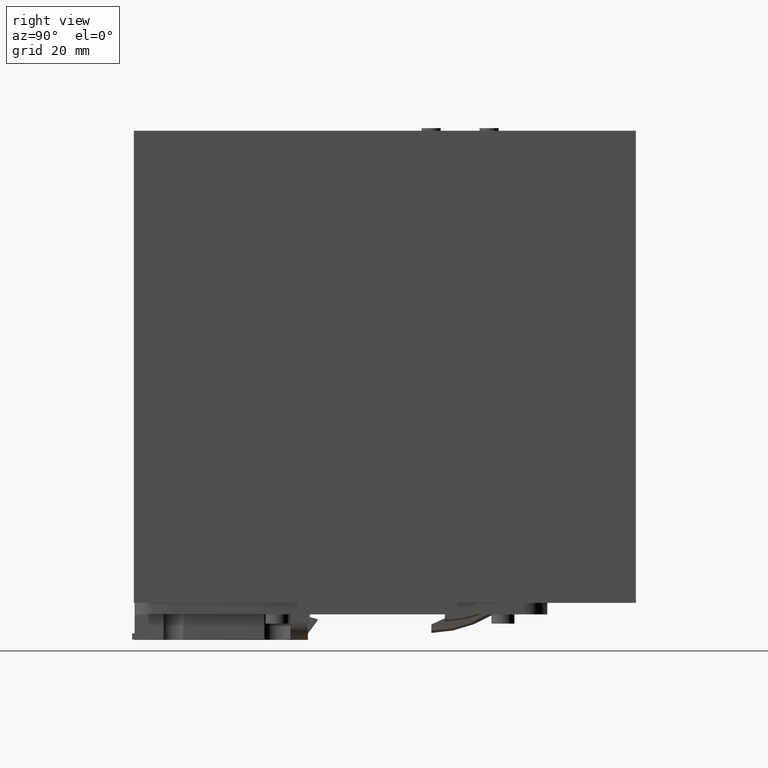
[diagram: clean part render]
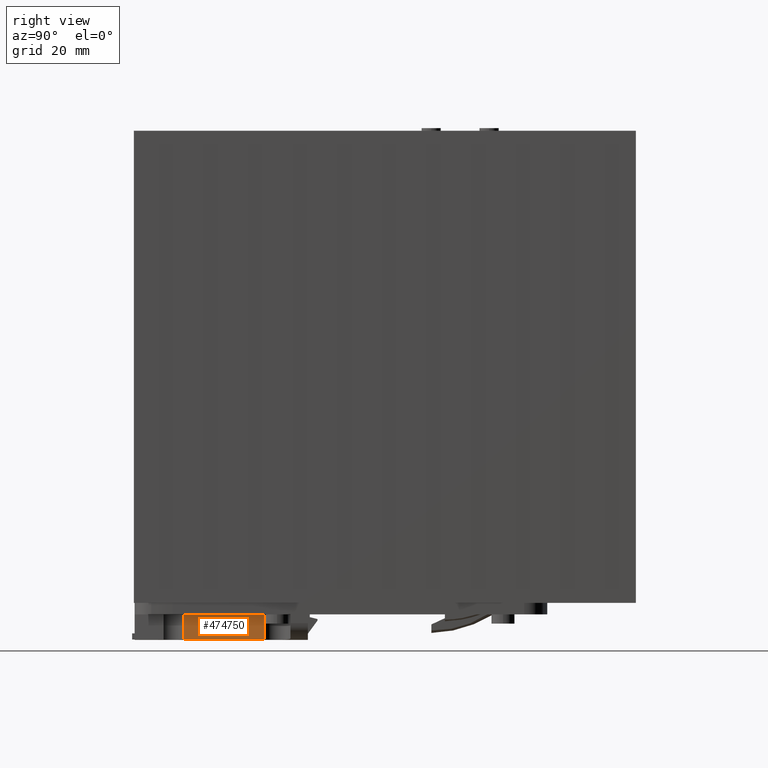
[diagram: same view with one face highlighted and labeled with its STEP entity id]
A machine part, right view. The second image highlights one B-rep face of the part: STEP entity #474750.
In plain terms, the highlighted cylindrical surface (partial cylindrical patch) has radius 401.5 mm, axis along (0, 0, -1).
Its self-contained STEP definition (entity closure, byte-faithful):
#471220=CARTESIAN_POINT('',(28.2357244112665,33.7857341003012,
6.59999999999972));
#471230=VERTEX_POINT('',#471220);
#471280=CARTESIAN_POINT('',(-373.198675095222,41.0433434100426,
6.59999999999972));
#471290=DIRECTION('',(9.95682444457783E-60,-3.26265223399926E-55,-1.));
#471300=DIRECTION('',(-1.,1.38913403349705E-19,-9.95682444457783E-60));
#471310=AXIS2_PLACEMENT_3D('',#471280,#471290,#471300);
#471320=CIRCLE('',#471310,401.500000000035);
#471330=CARTESIAN_POINT('',(27.304840790004,12.7735050022907,
6.59999999999972));
#471340=VERTEX_POINT('',#471330);
#471350=EDGE_CURVE('',#471230,#471340,#471320,.T.);
#472650=CARTESIAN_POINT('',(27.3048407900038,12.7735050022922,
0.131245795154342));
#472660=VERTEX_POINT('',#472650);
#472690=CARTESIAN_POINT('',(28.2357244112667,33.7857341003012,
0.233323904833924));
#472700=CARTESIAN_POINT('',(28.2198812613401,32.9094144879281,
0.231334833045736));
#472710=CARTESIAN_POINT('',(28.1824556578638,31.1568731499482,
0.226661551313413));
#472720=CARTESIAN_POINT('',(28.1091031168048,28.5284801966004,
0.217665717972039));
#472730=CARTESIAN_POINT('',(28.0185370941437,25.9005861489469,
0.206812945509284));
#472740=CARTESIAN_POINT('',(27.9107634772597,23.2733423620739,
0.19426305779993));
#472750=CARTESIAN_POINT('',(27.7857862197248,20.6468673484488,
0.180205162220062));
#472760=CARTESIAN_POINT('',(27.6436121483921,18.0212807075947,
0.164858488850882));
#472770=CARTESIAN_POINT('',(27.4842490500393,15.3967318565973,
0.148471519087593));
#472780=CARTESIAN_POINT('',(27.3665518904643,13.647776455762,
0.137038395468295));
#472790=CARTESIAN_POINT('',(27.3048407900088,12.7735050027357,
0.131245795149567));
#472800=B_SPLINE_CURVE_WITH_KNOTS('',3,(#472690,#472700,#472710,#472720,
#472730,#472740,#472750,#472760,#472770,#472780,#472790),.UNSPECIFIED.,
.F.,.F.,(4,1,1,1,1,1,1,1,4),(0.,0.124999077879369,0.24999859071467,
0.3749991528203,0.49999991536043,0.625000702189714,0.750001301312605,
0.875000866679188,1.),.UNSPECIFIED.);
#472810=CARTESIAN_POINT('',(28.2357244112665,33.7857341003012,
0.233323904833867));
#472820=VERTEX_POINT('',#472810);
#472830=EDGE_CURVE('',#472820,#472660,#472800,.T.);
#474430=CARTESIAN_POINT('',(28.2357244112669,33.785734100301,
6.76426461109753));
#474440=DIRECTION('',(9.95682444457783E-60,-3.26265223399926E-55,-1.));
#474450=VECTOR('',#474440,1.);
#474460=LINE('',#474430,#474450);
#474470=EDGE_CURVE('',#471230,#472820,#474460,.T.);
#474590=CARTESIAN_POINT('',(-373.198675095222,41.0433434100426,
6.76172328077224));
#474600=DIRECTION('',(9.95682444457783E-60,-3.26265223399926E-55,-1.));
#474610=DIRECTION('',(-1.,1.38913403349705E-19,-9.95682444457783E-60));
#474620=AXIS2_PLACEMENT_3D('',#474590,#474600,#474610);
#474630=CYLINDRICAL_SURFACE('',#474620,401.500000000035);
#474640=ORIENTED_EDGE('',*,*,#472830,.F.);
#474650=CARTESIAN_POINT('',(27.3048407900053,12.773505002303,
6.76172328077224));
#474660=DIRECTION('',(9.95682444457783E-60,-3.26265223399926E-55,-1.));
#474670=VECTOR('',#474660,1.);
#474680=LINE('',#474650,#474670);
#474690=EDGE_CURVE('',#471340,#472660,#474680,.T.);
#474700=ORIENTED_EDGE('',*,*,#474690,.T.);
#474710=ORIENTED_EDGE('',*,*,#471350,.T.);
#474720=ORIENTED_EDGE('',*,*,#474470,.F.);
#474730=EDGE_LOOP('',(#474720,#474710,#474700,#474640));
#474740=FACE_OUTER_BOUND('',#474730,.T.);
#474750=ADVANCED_FACE('',(#474740),#474630,.T.);